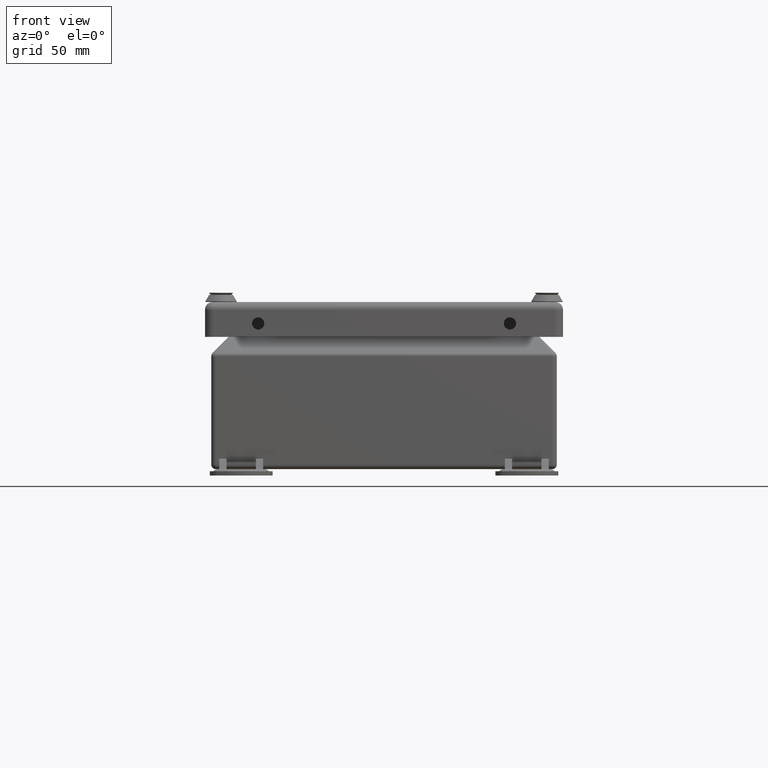
[diagram: clean part render]
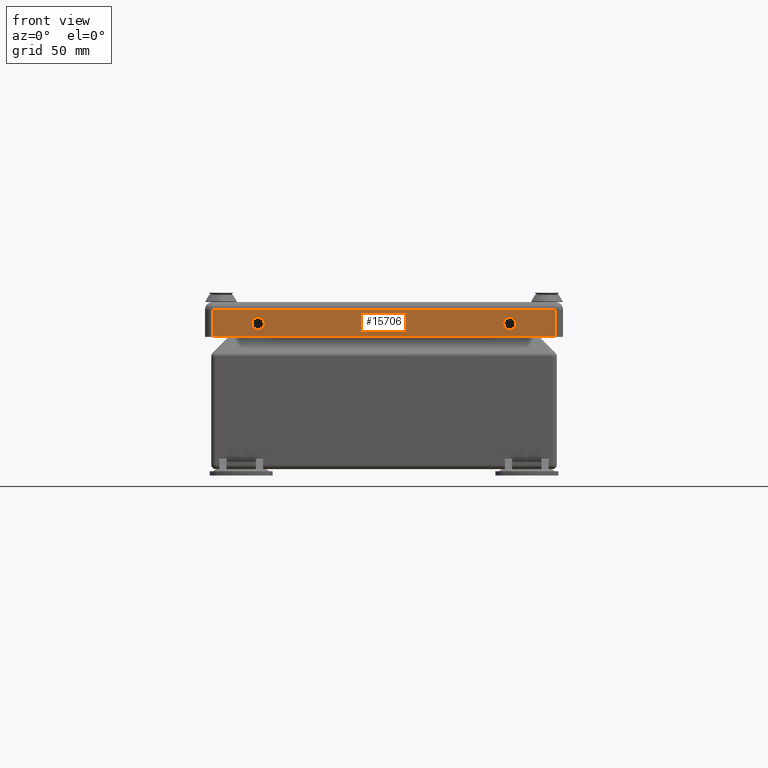
[diagram: same view with one face highlighted and labeled with its STEP entity id]
A machine part, front view. The second image highlights one B-rep face of the part: STEP entity #15706.
In plain terms, the highlighted planar face has unit normal (-0, -1, -0).
Its self-contained STEP definition (entity closure, byte-faithful):
#428=FACE_BOUND('',#4071,.T.);
#429=FACE_BOUND('',#4072,.T.);
#2078=CIRCLE('',#17821,0.115);
#2082=CIRCLE('',#17827,0.115);
#3064=FACE_OUTER_BOUND('',#4070,.T.);
#4070=EDGE_LOOP('',(#14218,#14219,#14220,#14221));
#4071=EDGE_LOOP('',(#14222));
#4072=EDGE_LOOP('',(#14223));
#5140=LINE('',#32444,#6194);
#5148=LINE('',#32481,#6202);
#5150=LINE('',#32487,#6204);
#5151=LINE('',#32488,#6205);
#6194=VECTOR('',#22499,0.393700787401575);
#6202=VECTOR('',#22545,0.393700787401575);
#6204=VECTOR('',#22551,0.393700787401575);
#6205=VECTOR('',#22552,0.393700787401575);
#7525=VERTEX_POINT('',#32418);
#7529=VERTEX_POINT('',#32430);
#7533=VERTEX_POINT('',#32441);
#7534=VERTEX_POINT('',#32443);
#7544=VERTEX_POINT('',#32480);
#7546=VERTEX_POINT('',#32486);
#9755=EDGE_CURVE('',#7525,#7525,#2078,.T.);
#9761=EDGE_CURVE('',#7529,#7529,#2082,.T.);
#9766=EDGE_CURVE('',#7533,#7534,#5140,.T.);
#9785=EDGE_CURVE('',#7534,#7544,#5148,.T.);
#9788=EDGE_CURVE('',#7533,#7546,#5150,.T.);
#9789=EDGE_CURVE('',#7544,#7546,#5151,.T.);
#14218=ORIENTED_EDGE('',*,*,#9766,.F.);
#14219=ORIENTED_EDGE('',*,*,#9788,.T.);
#14220=ORIENTED_EDGE('',*,*,#9789,.F.);
#14221=ORIENTED_EDGE('',*,*,#9785,.F.);
#14222=ORIENTED_EDGE('',*,*,#9755,.T.);
#14223=ORIENTED_EDGE('',*,*,#9761,.T.);
#14789=PLANE('',#17853);
#15706=ADVANCED_FACE('',(#3064,#428,#429),#14789,.T.);
#17821=AXIS2_PLACEMENT_3D('',#32420,#22472,#22473);
#17827=AXIS2_PLACEMENT_3D('',#32432,#22486,#22487);
#17853=AXIS2_PLACEMENT_3D('',#32485,#22549,#22550);
#22472=DIRECTION('center_axis',(0.,1.,0.));
#22473=DIRECTION('ref_axis',(-1.,0.,0.));
#22486=DIRECTION('center_axis',(0.,1.,0.));
#22487=DIRECTION('ref_axis',(-1.,0.,0.));
#22499=DIRECTION('',(1.,0.,0.));
#22545=DIRECTION('',(0.,0.,-1.));
#22549=DIRECTION('center_axis',(0.,-1.,0.));
#22550=DIRECTION('ref_axis',(1.,0.,0.));
#22551=DIRECTION('',(0.,0.,-1.));
#22552=DIRECTION('',(-1.,-2.17048156365498E-16,0.));
#32418=CARTESIAN_POINT('',(-2.25311023622047,-5.,-0.353));
#32420=CARTESIAN_POINT('Origin',(-2.36811023622047,-5.,-0.353));
#32430=CARTESIAN_POINT('',(2.48311023622047,-5.,-0.353));
#32432=CARTESIAN_POINT('Origin',(2.36811023622047,-5.,-0.353));
#32441=CARTESIAN_POINT('',(-3.22211023622047,-5.,-0.093));
#32443=CARTESIAN_POINT('',(3.22211023622047,-5.,-0.093));
#32444=CARTESIAN_POINT('',(-1.61105511811024,-5.,-0.093));
#32480=CARTESIAN_POINT('',(3.22211023622047,-5.,-0.603));
#32481=CARTESIAN_POINT('',(3.22211023622047,-5.,0.));
#32485=CARTESIAN_POINT('Origin',(-3.22211023622047,-5.,0.));
#32486=CARTESIAN_POINT('',(-3.22211023622047,-5.,-0.603));
#32487=CARTESIAN_POINT('',(-3.22211023622047,-5.,0.));
#32488=CARTESIAN_POINT('',(-3.22211023622047,-5.,-0.603));